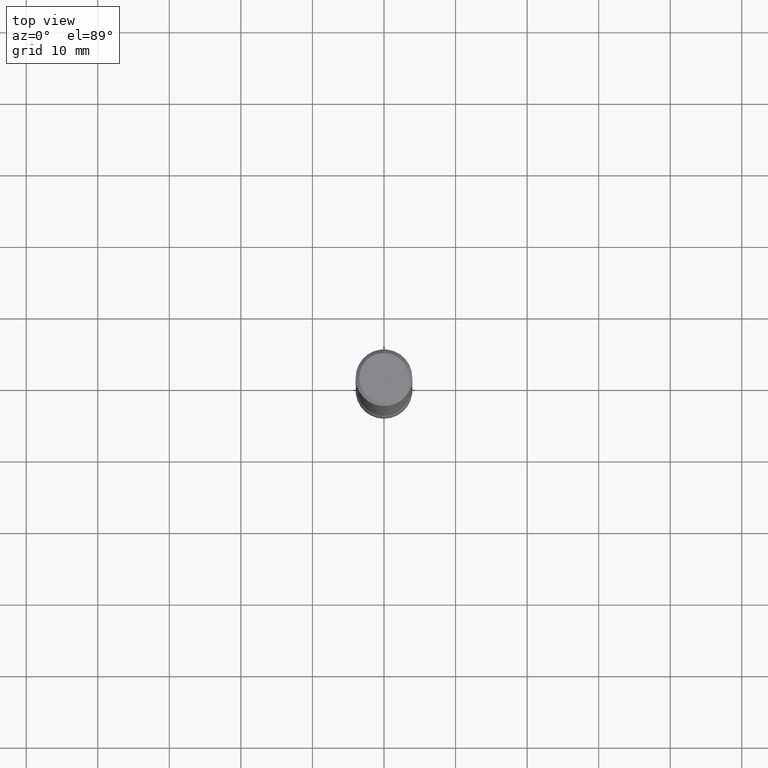
[diagram: clean part render]
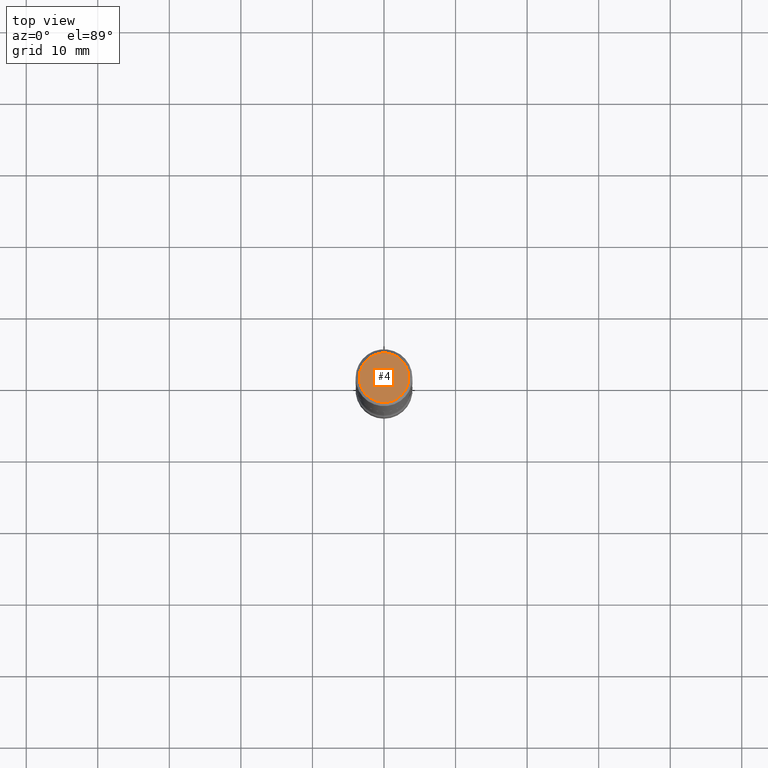
[diagram: same view with one face highlighted and labeled with its STEP entity id]
A machine part, top view. The second image highlights one B-rep face of the part: STEP entity #4.
In plain terms, the highlighted planar face has unit normal (0, -0, -1).
Its self-contained STEP definition (entity closure, byte-faithful):
#4 = ADVANCED_FACE ( 'NONE', ( #448 ), #99, .F. ) ;
#52 = VERTEX_POINT ( 'NONE', #286 ) ;
#73 = DIRECTION ( 'NONE',  ( -2.445468806185136597E-29, 3.491481338843145583E-15, 1.000000000000000000 ) ) ;
#99 = PLANE ( 'NONE',  #115 ) ;
#105 = EDGE_CURVE ( 'NONE', #52, #127, #491, .T. ) ;
#107 = CARTESIAN_POINT ( 'NONE',  ( 0.000000000000000000, 0.000000000000000000, 0.000000000000000000 ) ) ;
#110 = DIRECTION ( 'NONE',  ( 2.438088387897960049E-29, -3.491481338843145188E-15, -1.000000000000000000 ) ) ;
#115 = AXIS2_PLACEMENT_3D ( 'NONE', #155, #110, #165 ) ;
#127 = VERTEX_POINT ( 'NONE', #213 ) ;
#155 = CARTESIAN_POINT ( 'NONE',  ( 9.514286648347519855E-16, 0.1362499999999997324, -4.757143324173776691E-16 ) ) ;
#165 = DIRECTION ( 'NONE',  ( -1.000000000000000000, 6.982962677686265922E-15, -4.876176775795935793E-29 ) ) ;
#173 = EDGE_LOOP ( 'NONE', ( #495, #356 ) ) ;
#176 = AXIS2_PLACEMENT_3D ( 'NONE', #107, #73, #258 ) ;
#213 = CARTESIAN_POINT ( 'NONE',  ( 0.1362499999999997324, -1.038262645562516349E-15, 6.957025900226682464E-30 ) ) ;
#258 = DIRECTION ( 'NONE',  ( 1.000000000000000000, -6.982962677686266711E-15, 4.876176775795936353E-29 ) ) ;
#286 = CARTESIAN_POINT ( 'NONE',  ( -0.1362499999999997324, 9.863434782231834374E-16, -6.775751096333127272E-30 ) ) ;
#293 = CARTESIAN_POINT ( 'NONE',  ( 0.000000000000000000, 0.000000000000000000, 0.000000000000000000 ) ) ;
#345 = AXIS2_PLACEMENT_3D ( 'NONE', #293, #446, #380 ) ;
#356 = ORIENTED_EDGE ( 'NONE', *, *, #457, .T. ) ;
#380 = DIRECTION ( 'NONE',  ( 1.000000000000000000, -6.982962677686266711E-15, 4.876176775795936353E-29 ) ) ;
#446 = DIRECTION ( 'NONE',  ( -2.445468806185136597E-29, 3.491481338843145583E-15, 1.000000000000000000 ) ) ;
#448 = FACE_OUTER_BOUND ( 'NONE', #173, .T. ) ;
#452 = CIRCLE ( 'NONE', #176, 0.1362499999999997324 ) ;
#457 = EDGE_CURVE ( 'NONE', #127, #52, #452, .T. ) ;
#491 = CIRCLE ( 'NONE', #345, 0.1362499999999997324 ) ;
#495 = ORIENTED_EDGE ( 'NONE', *, *, #105, .T. ) ;